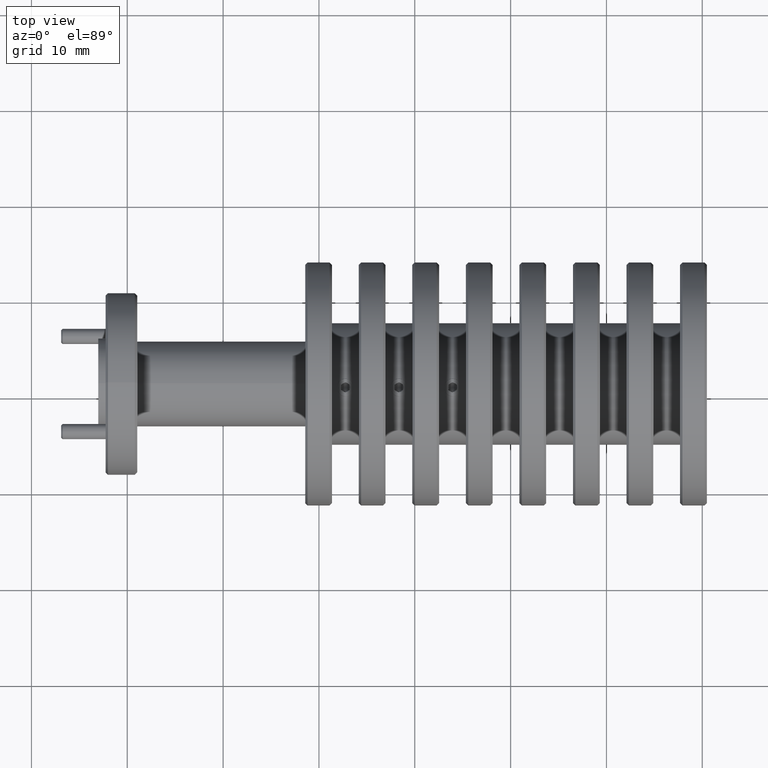
[diagram: clean part render]
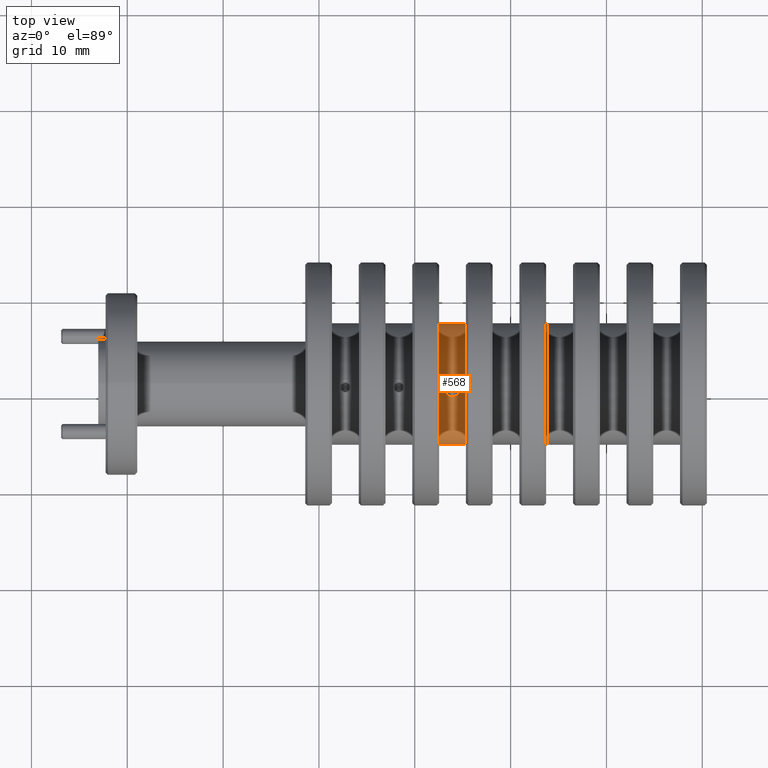
[diagram: same view with one face highlighted and labeled with its STEP entity id]
A machine part, top view. The second image highlights one B-rep face of the part: STEP entity #568.
In plain terms, the highlighted cylindrical surface (partial cylindrical patch) has radius 6.35 mm, axis along (1, 0, 0).
Its self-contained STEP definition (entity closure, byte-faithful):
#247 = CARTESIAN_POINT ( 'NONE',  ( 0.8061103057193299600, 1.233292430136084100, 1.027949227593007800 ) ) ;
#278 = CARTESIAN_POINT ( 'NONE',  ( -0.2388896942806702200, 1.250437412734505900, 1.277360633851221600 ) ) ;
#523 = CARTESIAN_POINT ( 'NONE',  ( -0.2938896942806698000, 1.233292430136084100, 1.027949227593007800 ) ) ;
#547 = CARTESIAN_POINT ( 'NONE',  ( -0.2047962335671106000, 1.224485983525269700, 1.277830170539188100 ) ) ;
#568 = ADVANCED_FACE ( 'NONE', ( #1227, #2268 ), #5158, .T. ) ;
#622 = AXIS2_PLACEMENT_3D ( 'NONE', #247, #4997, #7055 ) ;
#625 = CARTESIAN_POINT ( 'NONE',  ( -0.2297270785543375200, 1.249519438728578400, 1.277428322685026900 ) ) ;
#651 = CARTESIAN_POINT ( 'NONE',  ( -0.2388896942806702200, 1.250437412734505900, 1.277360633851221600 ) ) ;
#682 = VERTEX_POINT ( 'NONE', #1284 ) ;
#750 = EDGE_CURVE ( 'NONE', #2884, #3422, #5698, .T. ) ;
#1016 = EDGE_CURVE ( 'NONE', #2884, #3946, #4937, .T. ) ;
#1056 = AXIS2_PLACEMENT_3D ( 'NONE', #1587, #1568, #4300 ) ;
#1192 = EDGE_CURVE ( 'NONE', #6650, #682, #7970, .T. ) ;
#1227 = FACE_BOUND ( 'NONE', #7019, .T. ) ;
#1284 = CARTESIAN_POINT ( 'NONE',  ( -0.2388896942806702200, 1.250437412734505900, 1.277360633851221600 ) ) ;
#1519 = CARTESIAN_POINT ( 'NONE',  ( -0.2388896942806699500, 1.180617907321479100, 1.272337023209428700 ) ) ;
#1549 = CARTESIAN_POINT ( 'NONE',  ( -0.2480698121801091800, 1.249511109106258300, 1.277428785540713600 ) ) ;
#1568 = DIRECTION ( 'NONE',  ( 1.000000000000000000, 0.0000000000000000000, 0.0000000000000000000 ) ) ;
#1587 = CARTESIAN_POINT ( 'NONE',  ( -0.1838896942806698700, 1.233292430136084100, 1.027949227593007800 ) ) ;
#1630 = CARTESIAN_POINT ( 'NONE',  ( -0.2738928232243098600, 1.210759547596336000, 1.276974684480300700 ) ) ;
#1812 = DIRECTION ( 'NONE',  ( 0.0000000000000000000, 0.9974215059003817000, 0.07176586631132377000 ) ) ;
#1884 = EDGE_CURVE ( 'NONE', #682, #6650, #3974, .T. ) ;
#1908 = CARTESIAN_POINT ( 'NONE',  ( -0.2108762183460276800, 1.236843970684535600, 1.277945513365585500 ) ) ;
#2008 = EDGE_CURVE ( 'NONE', #3946, #6142, #8202, .T. ) ;
#2029 = CARTESIAN_POINT ( 'NONE',  ( -0.2297144620780681400, 1.181519840148110200, 1.272536108858928200 ) ) ;
#2077 = ORIENTED_EDGE ( 'NONE', *, *, #3815, .F. ) ;
#2134 = EDGE_LOOP ( 'NONE', ( #7780, #7282, #2077, #3517 ) ) ;
#2223 = CARTESIAN_POINT ( 'NONE',  ( -0.2603938191352278600, 1.243379123883828100, 1.277766670823995200 ) ) ;
#2268 = FACE_OUTER_BOUND ( 'NONE', #2134, .T. ) ;
#2283 = CARTESIAN_POINT ( 'NONE',  ( -0.2694488063905466400, 1.233017003902910900, 1.277985102126013600 ) ) ;
#2602 = CARTESIAN_POINT ( 'NONE',  ( -0.2174025430267268700, 1.243400894354300700, 1.277766311259238300 ) ) ;
#2726 = CARTESIAN_POINT ( 'NONE',  ( -0.2212394492102081300, 1.184994111644142300, 1.273245815405197800 ) ) ;
#2866 = CARTESIAN_POINT ( 'NONE',  ( -0.2388896942806699500, 1.180617907321479100, 1.272337023209428700 ) ) ;
#2869 = CARTESIAN_POINT ( 'NONE',  ( -0.2729817778906500300, 1.206232573404923500, 1.276516641785372800 ) ) ;
#2875 = CARTESIAN_POINT ( 'NONE',  ( -0.1838896942806698700, 0.9839370536609888300, 1.010007761015177000 ) ) ;
#2884 = VERTEX_POINT ( 'NONE', #7127 ) ;
#2893 = VECTOR ( 'NONE', #4301, 39.37007874015748100 ) ;
#2993 = CARTESIAN_POINT ( 'NONE',  ( -0.1838896942806698700, 1.482647806611179500, 1.045890694170838800 ) ) ;
#3386 = CIRCLE ( 'NONE', #1056, 0.2499999999999999200 ) ;
#3422 = VERTEX_POINT ( 'NONE', #2993 ) ;
#3517 = ORIENTED_EDGE ( 'NONE', *, *, #750, .F. ) ;
#3654 = CARTESIAN_POINT ( 'NONE',  ( -0.2738865492491939800, 1.219989715680504600, 1.277637927300440100 ) ) ;
#3815 = EDGE_CURVE ( 'NONE', #3422, #6142, #3386, .T. ) ;
#3872 = VECTOR ( 'NONE', #5473, 39.37007874015748100 ) ;
#3899 = ORIENTED_EDGE ( 'NONE', *, *, #1192, .F. ) ;
#3946 = VERTEX_POINT ( 'NONE', #8462 ) ;
#3962 = CARTESIAN_POINT ( 'NONE',  ( -0.2212539960059588300, 1.245984351995522700, 1.277633127384939900 ) ) ;
#3974 = B_SPLINE_CURVE_WITH_KNOTS ( 'NONE', 3,
 ( #278, #7743, #1549, #5002, #2223, #5732, #2283, #7060, #3654, #1630, #2869, #7633, #7709, #7010, #8383, #1519 ),
 .UNSPECIFIED., .F., .F.,
 ( 4, 2, 2, 2, 2, 2, 2, 4 ),
 ( 0.002782834888014317100, 0.003130604699195936800, 0.003478374510377556000, 0.003826144321559175600, 0.004173914132740804400, 0.004521683943922433600, 0.004869453755104062800, 0.005564993377467332400 ),
 .UNSPECIFIED. ) ;
#4300 = DIRECTION ( 'NONE',  ( 0.0000000000000000000, 0.9974215059003817000, 0.07176586631132377000 ) ) ;
#4301 = DIRECTION ( 'NONE',  ( 1.000000000000000000, 0.0000000000000000000, 0.0000000000000000000 ) ) ;
#4698 = CARTESIAN_POINT ( 'NONE',  ( -0.2109118087977327500, 1.193953242473357200, 1.274855960204058300 ) ) ;
#4727 = CARTESIAN_POINT ( 'NONE',  ( -0.2388896942806699500, 1.180617907321479100, 1.272337023209428700 ) ) ;
#4937 = CIRCLE ( 'NONE', #8076, 0.2499999999999999200 ) ;
#4997 = DIRECTION ( 'NONE',  ( 1.000000000000000000, 0.0000000000000000000, 0.0000000000000000000 ) ) ;
#5002 = CARTESIAN_POINT ( 'NONE',  ( -0.2564945096173577000, 1.245998262626558700, 1.277632341163077400 ) ) ;
#5083 = CARTESIAN_POINT ( 'NONE',  ( 0.8061103057193299600, 0.9839370536609888300, 1.010007761015177000 ) ) ;
#5158 = CYLINDRICAL_SURFACE ( 'NONE', #622, 0.2499999999999999200 ) ;
#5314 = CARTESIAN_POINT ( 'NONE',  ( -0.2083086210076649500, 1.232979074425485400, 1.277985106933914300 ) ) ;
#5335 = CARTESIAN_POINT ( 'NONE',  ( -0.2038913923674355900, 1.210777890565137400, 1.276975326751298400 ) ) ;
#5350 = ORIENTED_EDGE ( 'NONE', *, *, #1884, .F. ) ;
#5376 = CARTESIAN_POINT ( 'NONE',  ( -0.2048129051521854500, 1.206188968213902900, 1.276511464338898400 ) ) ;
#5473 = DIRECTION ( 'NONE',  ( 1.000000000000000000, 0.0000000000000000000, 0.0000000000000000000 ) ) ;
#5698 = LINE ( 'NONE', #7340, #3872 ) ;
#5732 = CARTESIAN_POINT ( 'NONE',  ( -0.2668501342640751700, 1.236901946300733100, 1.277944162994278500 ) ) ;
#6142 = VERTEX_POINT ( 'NONE', #2875 ) ;
#6650 = VERTEX_POINT ( 'NONE', #2866 ) ;
#6699 = CARTESIAN_POINT ( 'NONE',  ( -0.2342584999371577200, 1.180617907321479300, 1.272337023209428700 ) ) ;
#7010 = CARTESIAN_POINT ( 'NONE',  ( -0.2572131020408008900, 1.184382644163705100, 1.273203903479358700 ) ) ;
#7019 = EDGE_LOOP ( 'NONE', ( #3899, #5350 ) ) ;
#7055 = DIRECTION ( 'NONE',  ( 0.0000000000000000000, 0.9974215059003817000, 0.07176586631132377000 ) ) ;
#7060 = CARTESIAN_POINT ( 'NONE',  ( -0.2729712853696419900, 1.224529712969591600, 1.277831658349863500 ) ) ;
#7127 = CARTESIAN_POINT ( 'NONE',  ( -0.2938896942806698000, 1.482647806611179500, 1.045890694170838800 ) ) ;
#7236 = DIRECTION ( 'NONE',  ( 1.000000000000000000, 0.0000000000000000000, 0.0000000000000000000 ) ) ;
#7282 = ORIENTED_EDGE ( 'NONE', *, *, #2008, .T. ) ;
#7340 = CARTESIAN_POINT ( 'NONE',  ( 0.8061103057193299600, 1.482647806611179500, 1.045890694170838800 ) ) ;
#7459 = CARTESIAN_POINT ( 'NONE',  ( -0.2343182784013538000, 1.250437412734505900, 1.277360633851221600 ) ) ;
#7633 = CARTESIAN_POINT ( 'NONE',  ( -0.2694745605908603900, 1.197815036087019700, 1.275455489647278300 ) ) ;
#7709 = CARTESIAN_POINT ( 'NONE',  ( -0.2668761455730246900, 1.193964755948262500, 1.274857793351614300 ) ) ;
#7743 = CARTESIAN_POINT ( 'NONE',  ( -0.2434599990271856500, 1.250437412734505900, 1.277360633851221300 ) ) ;
#7780 = ORIENTED_EDGE ( 'NONE', *, *, #1016, .T. ) ;
#7970 = B_SPLINE_CURVE_WITH_KNOTS ( 'NONE', 3,
 ( #4727, #6699, #2029, #2726, #8098, #4698, #8708, #5376, #5335, #8078, #547, #5314, #1908, #2602, #3962, #625, #7459, #651 ),
 .UNSPECIFIED., .F., .F.,
 ( 4, 2, 2, 2, 2, 2, 2, 2, 4 ),
 ( 6.938893903907228400E-018, 0.0003478543610017869800, 0.0006957087220035670300, 0.001043563083005346900, 0.001391417444007127100, 0.001739271805008917700, 0.002087126166010717200, 0.002434980527012517200, 0.002782834888014317100 ),
 .UNSPECIFIED. ) ;
#8076 = AXIS2_PLACEMENT_3D ( 'NONE', #523, #7236, #1812 ) ;
#8078 = CARTESIAN_POINT ( 'NONE',  ( -0.2038880010084602500, 1.219898141306855500, 1.277632017510225400 ) ) ;
#8098 = CARTESIAN_POINT ( 'NONE',  ( -0.2173600375205171100, 1.187565069936244100, 1.273753041281450600 ) ) ;
#8202 = LINE ( 'NONE', #5083, #2893 ) ;
#8383 = CARTESIAN_POINT ( 'NONE',  ( -0.2481498316424697000, 1.180617907321479300, 1.272337023209428700 ) ) ;
#8462 = CARTESIAN_POINT ( 'NONE',  ( -0.2938896942806698000, 0.9839370536609889400, 1.010007761015177000 ) ) ;
#8708 = CARTESIAN_POINT ( 'NONE',  ( -0.2083051237605727200, 1.197821254549987100, 1.275455952525538700 ) ) ;